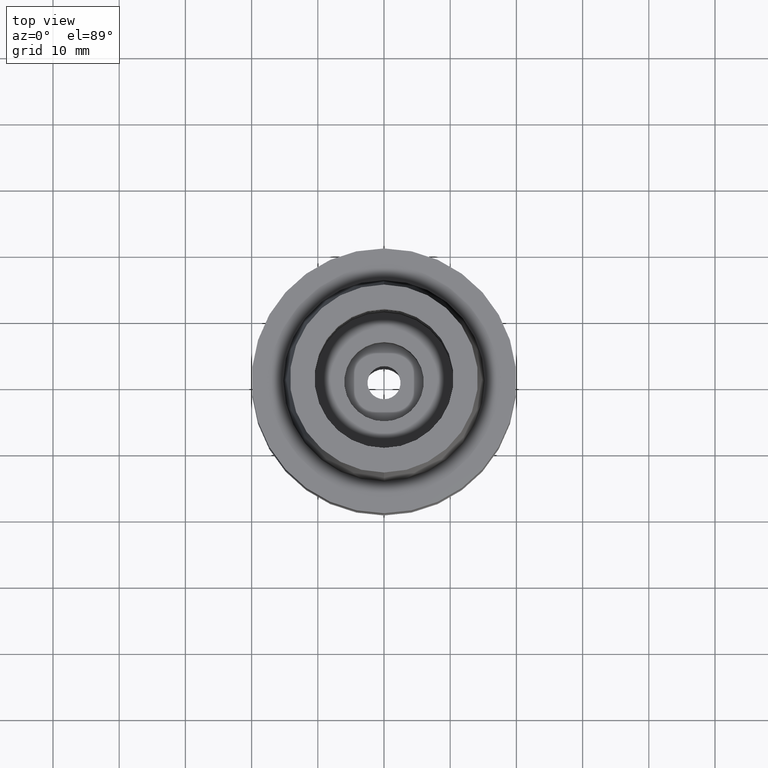
[diagram: clean part render]
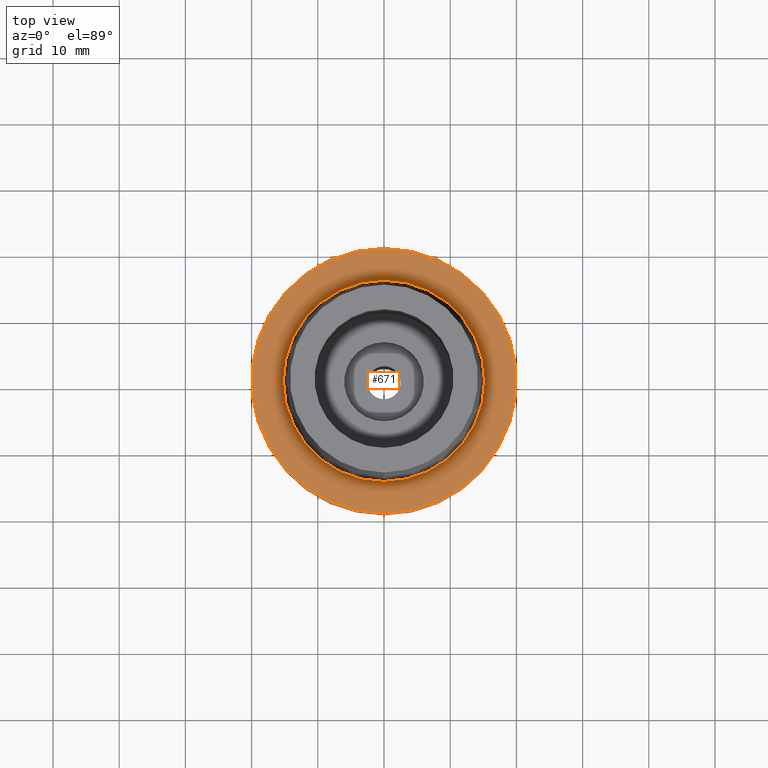
[diagram: same view with one face highlighted and labeled with its STEP entity id]
A machine part, top view. The second image highlights one B-rep face of the part: STEP entity #671.
In plain terms, the highlighted planar face has unit normal (0, 0, 1).
Its self-contained STEP definition (entity closure, byte-faithful):
#213 = DIRECTION ( 'NONE',  ( 0.0000000000000000000, 1.000000000000000000, 0.0000000000000000000 ) ) ;
#253 = AXIS2_PLACEMENT_3D ( 'NONE', #1584, #2614, #542 ) ;
#312 = AXIS2_PLACEMENT_3D ( 'NONE', #2578, #1110, #706 ) ;
#324 = DIRECTION ( 'NONE',  ( 0.0000000000000000000, -1.000000000000000000, 0.0000000000000000000 ) ) ;
#351 = CARTESIAN_POINT ( 'NONE',  ( 0.0000000000000000000, -15.19999963424000100, 3.801403636316999971E-13 ) ) ;
#376 = VERTEX_POINT ( 'NONE', #1253 ) ;
#392 = CIRCLE ( 'NONE', #504, 20.00000000000000000 ) ;
#442 = AXIS2_PLACEMENT_3D ( 'NONE', #1166, #1214, #1199 ) ;
#504 = AXIS2_PLACEMENT_3D ( 'NONE', #2048, #1031, #324 ) ;
#531 = CIRCLE ( 'NONE', #312, 15.19999963424000100 ) ;
#542 = DIRECTION ( 'NONE',  ( 0.0000000000000000000, -1.000000000000000000, 0.0000000000000000000 ) ) ;
#578 = VERTEX_POINT ( 'NONE', #1245 ) ;
#625 = AXIS2_PLACEMENT_3D ( 'NONE', #1057, #1428, #213 ) ;
#671 = ADVANCED_FACE ( 'NONE', ( #1826, #2408 ), #1349, .T. ) ;
#675 = CARTESIAN_POINT ( 'NONE',  ( 0.0000000000000000000, -20.00000000000000000, 1.705302565823999875E-13 ) ) ;
#706 = DIRECTION ( 'NONE',  ( 0.0000000000000000000, 1.000000000000000000, 0.0000000000000000000 ) ) ;
#797 = ORIENTED_EDGE ( 'NONE', *, *, #863, .F. ) ;
#863 = EDGE_CURVE ( 'NONE', #376, #2536, #1138, .T. ) ;
#1031 = DIRECTION ( 'NONE',  ( 0.0000000000000000000, 0.0000000000000000000, -1.000000000000000000 ) ) ;
#1057 = CARTESIAN_POINT ( 'NONE',  ( 0.0000000000000000000, 0.0000000000000000000, 1.705302565823999875E-13 ) ) ;
#1110 = DIRECTION ( 'NONE',  ( 0.0000000000000000000, 0.0000000000000000000, 1.000000000000000000 ) ) ;
#1138 = CIRCLE ( 'NONE', #625, 20.00000000000000000 ) ;
#1166 = CARTESIAN_POINT ( 'NONE',  ( 0.0000000000000000000, 0.0000000000000000000, 0.0000000000000000000 ) ) ;
#1199 = DIRECTION ( 'NONE',  ( 1.000000000000000000, 0.0000000000000000000, 0.0000000000000000000 ) ) ;
#1214 = DIRECTION ( 'NONE',  ( 0.0000000000000000000, 0.0000000000000000000, 1.000000000000000000 ) ) ;
#1245 = CARTESIAN_POINT ( 'NONE',  ( 0.0000000000000000000, 15.19999963424000100, 3.801403636316999971E-13 ) ) ;
#1253 = CARTESIAN_POINT ( 'NONE',  ( 0.0000000000000000000, 20.00000000000000000, 1.705302565823999875E-13 ) ) ;
#1349 = PLANE ( 'NONE',  #442 ) ;
#1394 = VERTEX_POINT ( 'NONE', #351 ) ;
#1428 = DIRECTION ( 'NONE',  ( 0.0000000000000000000, 0.0000000000000000000, -1.000000000000000000 ) ) ;
#1584 = CARTESIAN_POINT ( 'NONE',  ( 0.0000000000000000000, 0.0000000000000000000, 6.821210263297000155E-13 ) ) ;
#1611 = EDGE_LOOP ( 'NONE', ( #797, #2275 ) ) ;
#1650 = ORIENTED_EDGE ( 'NONE', *, *, #2324, .F. ) ;
#1826 = FACE_OUTER_BOUND ( 'NONE', #1611, .T. ) ;
#1935 = EDGE_CURVE ( 'NONE', #2536, #376, #392, .T. ) ;
#2048 = CARTESIAN_POINT ( 'NONE',  ( 0.0000000000000000000, 0.0000000000000000000, 1.705302565823999875E-13 ) ) ;
#2127 = EDGE_CURVE ( 'NONE', #1394, #578, #2264, .T. ) ;
#2248 = ORIENTED_EDGE ( 'NONE', *, *, #2127, .F. ) ;
#2264 = CIRCLE ( 'NONE', #253, 15.19999963424000100 ) ;
#2275 = ORIENTED_EDGE ( 'NONE', *, *, #1935, .F. ) ;
#2324 = EDGE_CURVE ( 'NONE', #578, #1394, #531, .T. ) ;
#2408 = FACE_BOUND ( 'NONE', #2615, .T. ) ;
#2536 = VERTEX_POINT ( 'NONE', #675 ) ;
#2578 = CARTESIAN_POINT ( 'NONE',  ( 0.0000000000000000000, 0.0000000000000000000, 6.821210263297000155E-13 ) ) ;
#2614 = DIRECTION ( 'NONE',  ( 0.0000000000000000000, 0.0000000000000000000, 1.000000000000000000 ) ) ;
#2615 = EDGE_LOOP ( 'NONE', ( #1650, #2248 ) ) ;